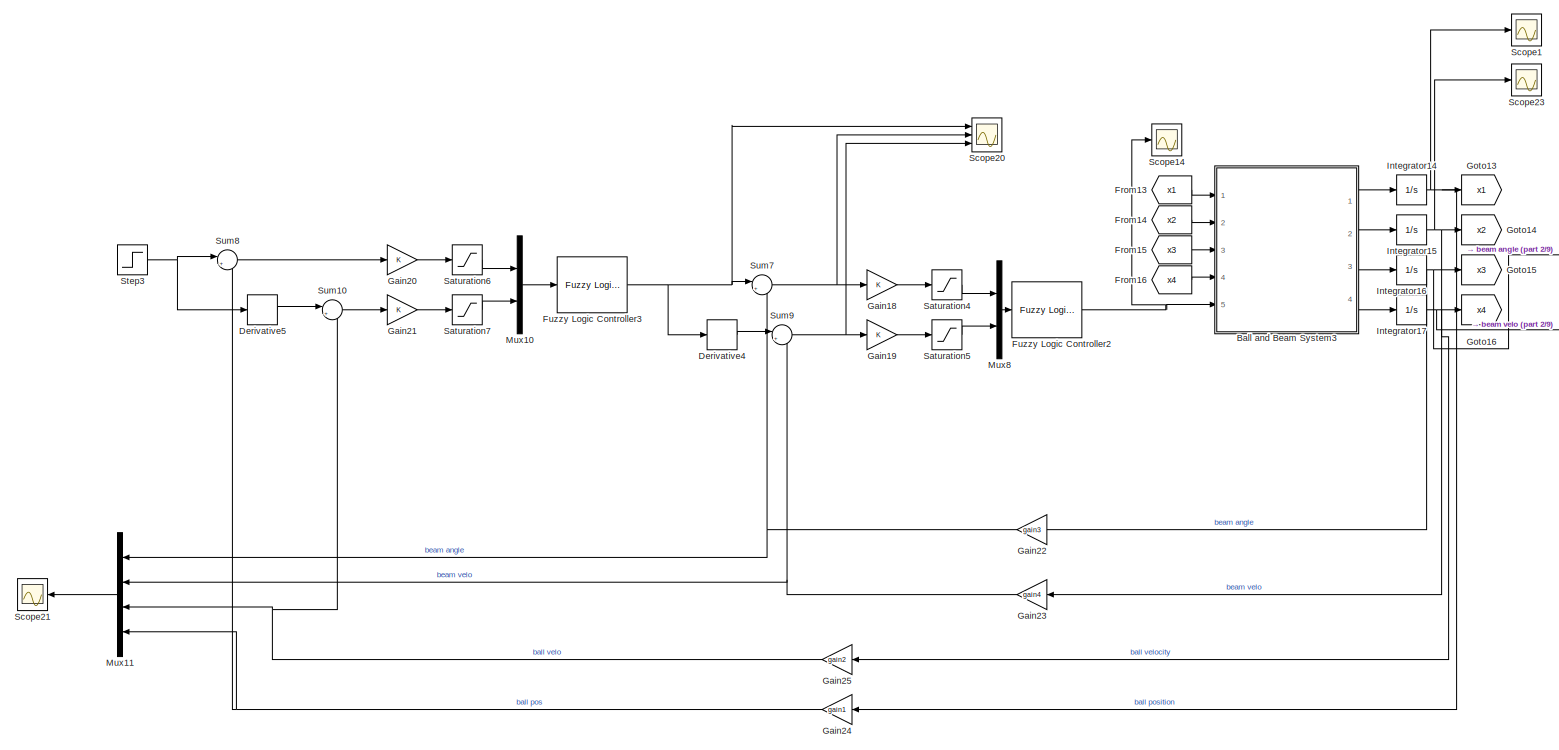
[diagram: root canvas - part 1/9, top center region]
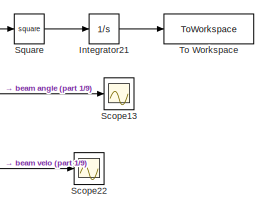
[diagram: root canvas - part 2/9, top right region]
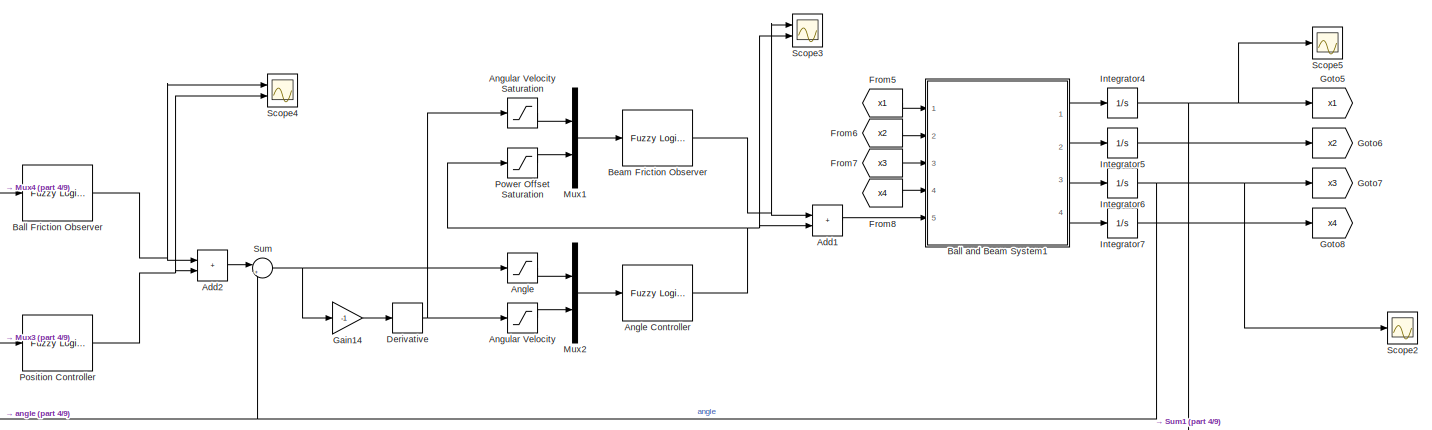
[diagram: root canvas - part 3/9, top left region]
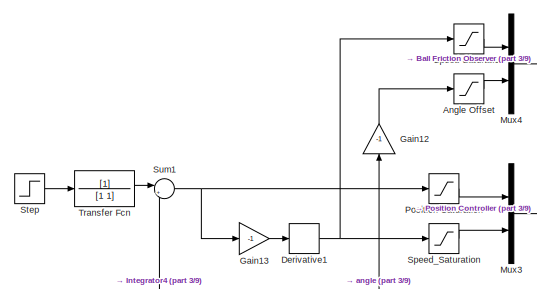
[diagram: root canvas - part 4/9, top left region]
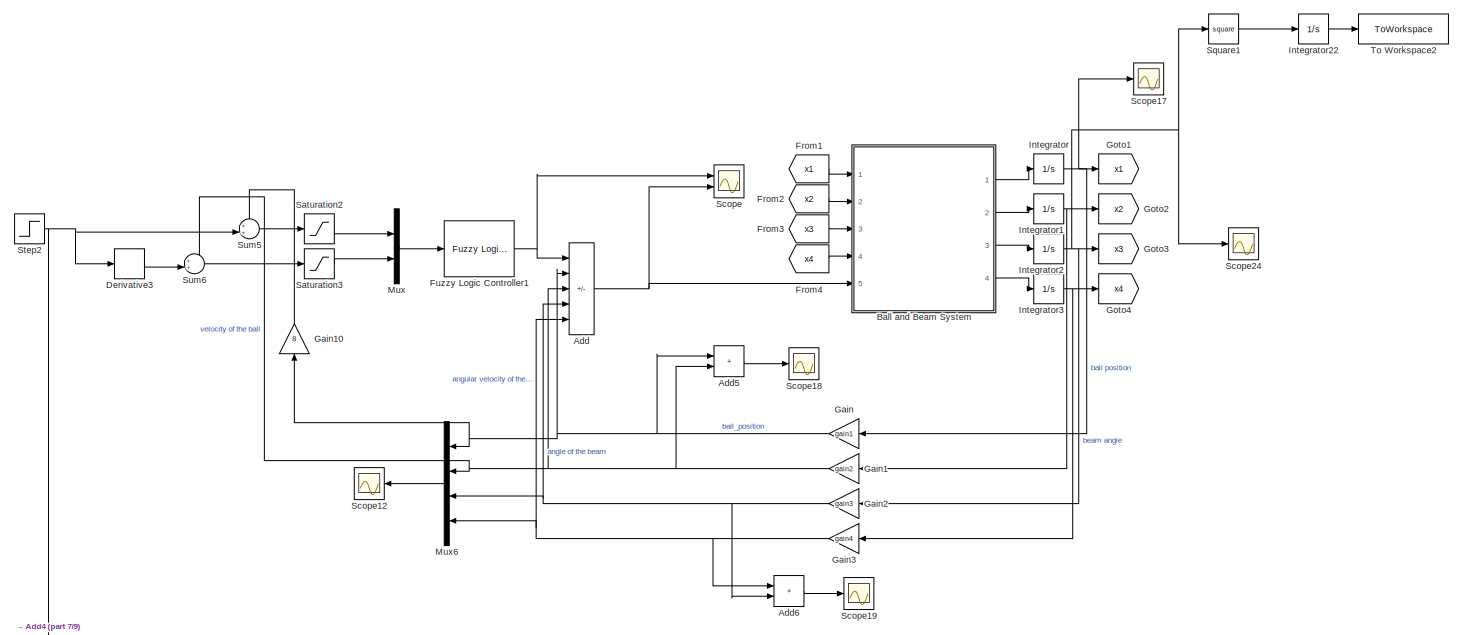
[diagram: root canvas - part 5/9, middle right region]
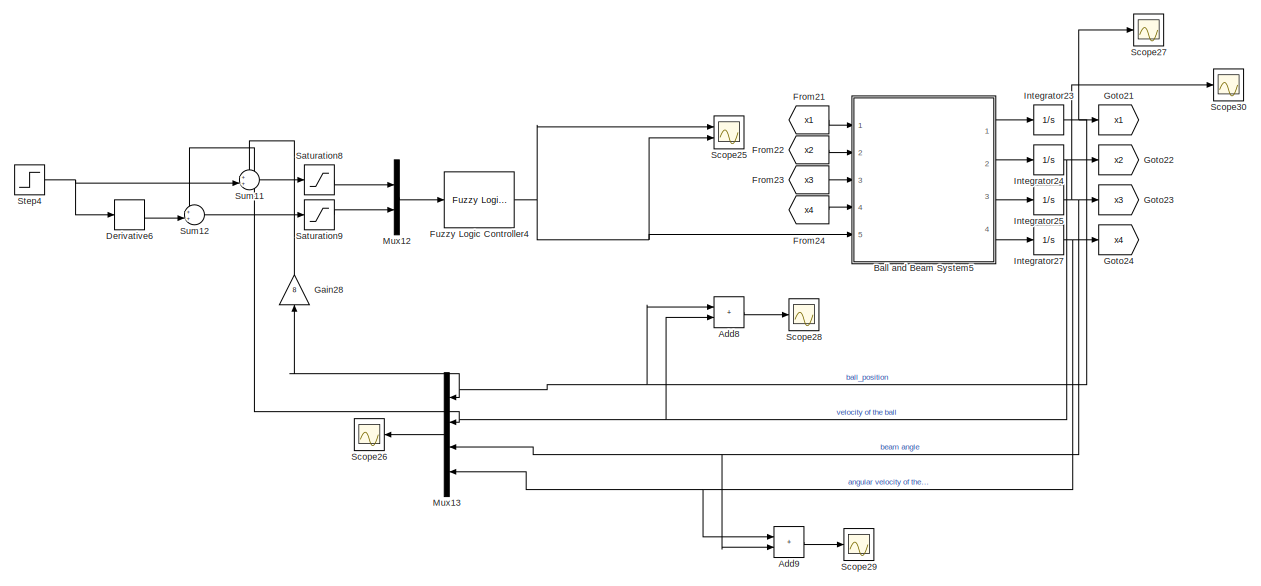
[diagram: root canvas - part 6/9, central region]
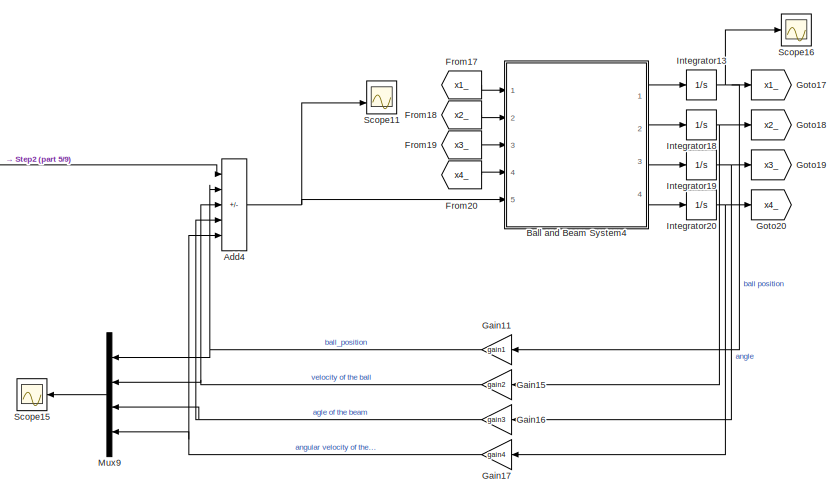
[diagram: root canvas - part 7/9, middle right region]
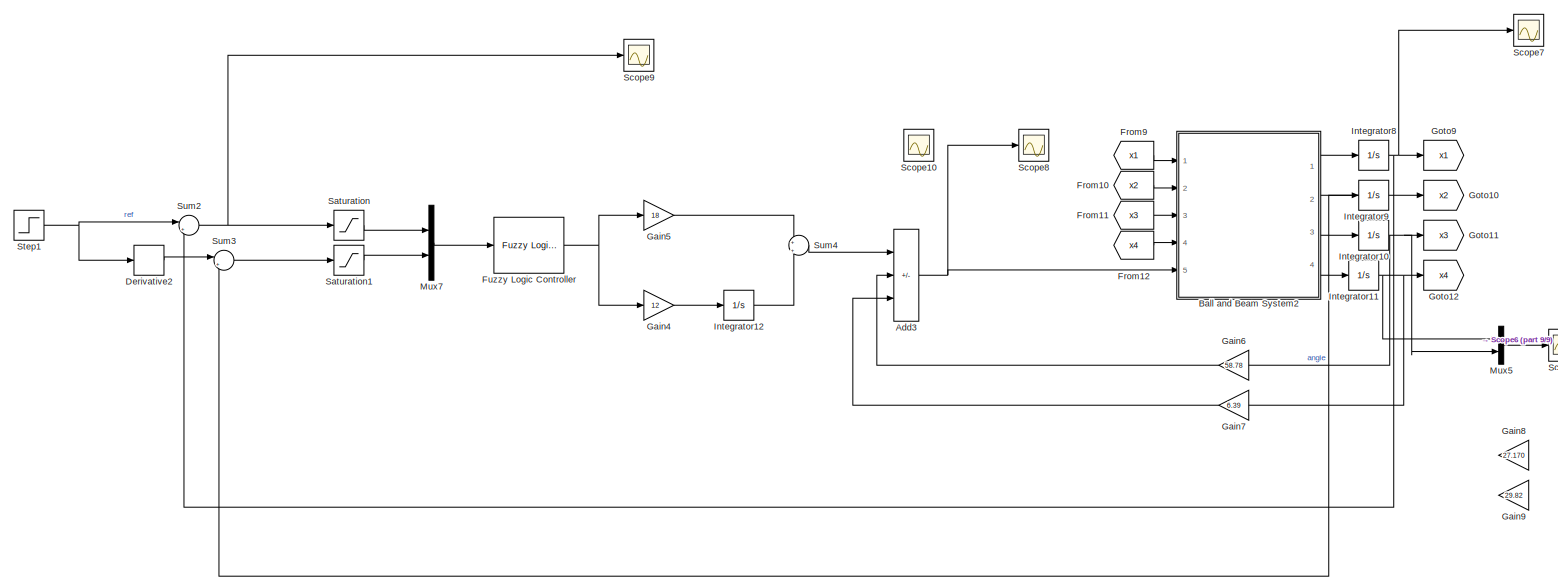
[diagram: root canvas - part 8/9, bottom right region]
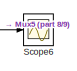
[diagram: root canvas - part 9/9, bottom right region]
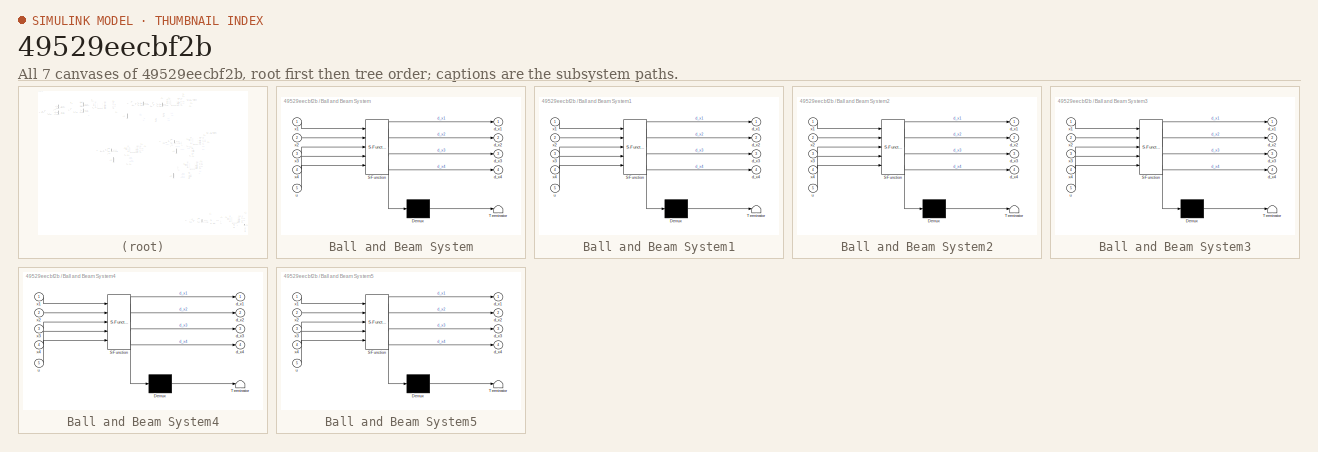
[diagram: thumbnail index - all 7 canvases of the model, root first then tree order]
MODEL slx_49529eecbf2b
KIND model
CONFIG AbsTol = auto
CONFIG EnableMultiTasking = off
CONFIG FixedStep = 0.05
CONFIG MaxStep = auto
CONFIG MinStep = auto
CONFIG RelTol = 1e-3
CONFIG SampleTimeConstraint = Unconstrained
CONFIG SolverName = FixedStepAuto
CONFIG StartTime = 0.0
CONFIG StopTime = 100
BLOCK [Sum] Add
  IconShape = rectangular
  Inputs = +----
  Ports = [5, 1]
BLOCK [Sum] Add1
  Commented = on
  IconShape = rectangular
  Ports = [2, 1]
BLOCK [Sum] Add2
  Commented = on
  IconShape = rectangular
  Ports = [2, 1]
BLOCK [Sum] Add3
  Commented = on
  IconShape = rectangular
  Inputs = +--
  Ports = [3, 1]
BLOCK [Sum] Add4
  IconShape = rectangular
  Inputs = +----
  Ports = [5, 1]
BLOCK [Sum] Add5
  IconShape = rectangular
  Ports = [2, 1]
BLOCK [Sum] Add6
  IconShape = rectangular
  Ports = [2, 1]
BLOCK [Sum] Add8
  Commented = on
  IconShape = rectangular
  Ports = [2, 1]
BLOCK [Sum] Add9
  Commented = on
  IconShape = rectangular
  Ports = [2, 1]
BLOCK [Saturate] Angle
  Commented = on
  LowerLimit = angle_input_alt
  UpperLimit = angle_input_ust
BLOCK [Reference] Angle Controller  REF=fuzblock/Fuzzy Logic   (lib defined in mdl_858b3b3e7478)
Controller
  Commented = on
  Ports = [1, 1]
  SourceBlock = fuzblock/Fuzzy Logic \nController
  SourceProductBaseCode = FL
  SourceType = Fuzzy Inference System
BLOCK [Saturate] Angle Offset
  Commented = on
  LowerLimit = -0.1
  UpperLimit = 0.1
BLOCK [Saturate] Angular Velocity
  Commented = on
  LowerLimit = angular_velocity_alt
  UpperLimit = angular_velocity_ust
BLOCK [Saturate] Angular Velocity Saturation
  Commented = on
  LowerLimit = angularvelocity_alt
  NameLocation = left
  UpperLimit = angularvelocity_ust
BLOCK [Reference] Ball Friction Observer  REF=fuzblock/Fuzzy Logic   (lib defined in mdl_858b3b3e7478)
Controller
  Commented = on
  Ports = [1, 1]
  SourceBlock = fuzblock/Fuzzy Logic \nController
  SourceProductBaseCode = FL
  SourceType = Fuzzy Inference System
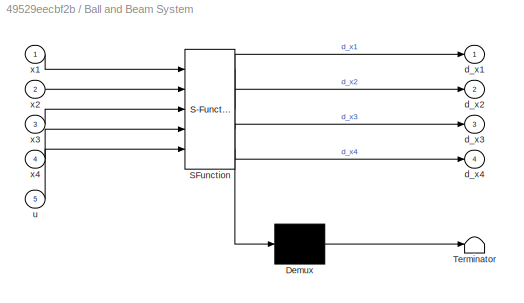
BLOCK [SubSystem] Ball and Beam System
  ErrorFcn = Stateflow.Translate.translate
  PermitHierarchicalResolution = ExplicitOnly
  Ports = [5, 4]
  RequestExecContextInheritance = off
  SFBlockType = MATLAB Function
  TreatAsAtomicUnit = on
BLOCK [Demux] Ball and Beam System/ Demux 
  Outputs = 1
  Ports = [1, 1]
BLOCK [S-Function] Ball and Beam System/ SFunction 
  EnableBusSupport = on
  FunctionName = sf_sfun
  PortCounts = [5 5]
  Ports = [5, 5]
  SFcnIsStateOwnerBlock = off
  SFunctionDeploymentMode = off
  Tag = Stateflow S-Function 2
BLOCK [Terminator] Ball and Beam System/ Terminator 
BLOCK [Outport] Ball and Beam System/d_x1
BLOCK [Outport] Ball and Beam System/d_x2
  Port = 2
BLOCK [Outport] Ball and Beam System/d_x3
  Port = 3
BLOCK [Outport] Ball and Beam System/d_x4
  Port = 4
BLOCK [Inport] Ball and Beam System/u
  Port = 5
BLOCK [Inport] Ball and Beam System/x1
BLOCK [Inport] Ball and Beam System/x2
  Port = 2
BLOCK [Inport] Ball and Beam System/x3
  Port = 3
BLOCK [Inport] Ball and Beam System/x4
  Port = 4
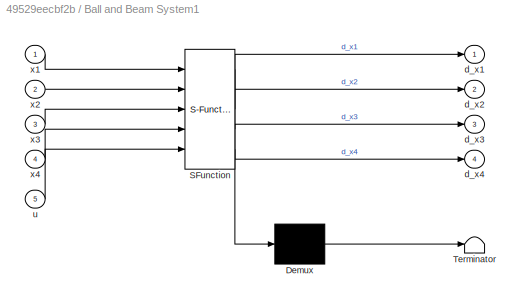
BLOCK [SubSystem] Ball and Beam System1
  Commented = on
  ErrorFcn = Stateflow.Translate.translate
  PermitHierarchicalResolution = ExplicitOnly
  Ports = [5, 4]
  RequestExecContextInheritance = off
  SFBlockType = MATLAB Function
  TreatAsAtomicUnit = on
BLOCK [Demux] Ball and Beam System1/ Demux 
  Outputs = 1
  Ports = [1, 1]
BLOCK [S-Function] Ball and Beam System1/ SFunction 
  EnableBusSupport = on
  FunctionName = sf_sfun
  PortCounts = [5 5]
  Ports = [5, 5]
  SFcnIsStateOwnerBlock = off
  SFunctionDeploymentMode = off
  Tag = Stateflow S-Function 1
BLOCK [Terminator] Ball and Beam System1/ Terminator 
BLOCK [Outport] Ball and Beam System1/d_x1
BLOCK [Outport] Ball and Beam System1/d_x2
  Port = 2
BLOCK [Outport] Ball and Beam System1/d_x3
  Port = 3
BLOCK [Outport] Ball and Beam System1/d_x4
  Port = 4
BLOCK [Inport] Ball and Beam System1/u
  Port = 5
BLOCK [Inport] Ball and Beam System1/x1
BLOCK [Inport] Ball and Beam System1/x2
  Port = 2
BLOCK [Inport] Ball and Beam System1/x3
  Port = 3
BLOCK [Inport] Ball and Beam System1/x4
  Port = 4
BLOCK [SubSystem] Ball and Beam System2
  Commented = on
  ErrorFcn = Stateflow.Translate.translate
  PermitHierarchicalResolution = ExplicitOnly
  Ports = [5, 4]
  RequestExecContextInheritance = off
  SFBlockType = MATLAB Function
  TreatAsAtomicUnit = on
BLOCK [Demux] Ball and Beam System2/ Demux 
  Outputs = 1
  Ports = [1, 1]
BLOCK [S-Function] Ball and Beam System2/ SFunction 
  EnableBusSupport = on
  FunctionName = sf_sfun
  PortCounts = [5 5]
  Ports = [5, 5]
  SFcnIsStateOwnerBlock = off
  SFunctionDeploymentMode = off
  Tag = Stateflow S-Function 3
BLOCK [Terminator] Ball and Beam System2/ Terminator 
BLOCK [Outport] Ball and Beam System2/d_x1
BLOCK [Outport] Ball and Beam System2/d_x2
  Port = 2
BLOCK [Outport] Ball and Beam System2/d_x3
  Port = 3
BLOCK [Outport] Ball and Beam System2/d_x4
  Port = 4
BLOCK [Inport] Ball and Beam System2/u
  Port = 5
BLOCK [Inport] Ball and Beam System2/x1
BLOCK [Inport] Ball and Beam System2/x2
  Port = 2
BLOCK [Inport] Ball and Beam System2/x3
  Port = 3
BLOCK [Inport] Ball and Beam System2/x4
  Port = 4
BLOCK [SubSystem] Ball and Beam System3
  Commented = on
  ErrorFcn = Stateflow.Translate.translate
  PermitHierarchicalResolution = ExplicitOnly
  Ports = [5, 4]
  RequestExecContextInheritance = off
  SFBlockType = MATLAB Function
  TreatAsAtomicUnit = on
BLOCK [Demux] Ball and Beam System3/ Demux 
  Outputs = 1
  Ports = [1, 1]
BLOCK [S-Function] Ball and Beam System3/ SFunction 
  EnableBusSupport = on
  FunctionName = sf_sfun
  PortCounts = [5 5]
  Ports = [5, 5]
  SFcnIsStateOwnerBlock = off
  SFunctionDeploymentMode = off
  Tag = Stateflow S-Function 4
BLOCK [Terminator] Ball and Beam System3/ Terminator 
BLOCK [Outport] Ball and Beam System3/d_x1
BLOCK [Outport] Ball and Beam System3/d_x2
  Port = 2
BLOCK [Outport] Ball and Beam System3/d_x3
  Port = 3
BLOCK [Outport] Ball and Beam System3/d_x4
  Port = 4
BLOCK [Inport] Ball and Beam System3/u
  Port = 5
BLOCK [Inport] Ball and Beam System3/x1
BLOCK [Inport] Ball and Beam System3/x2
  Port = 2
BLOCK [Inport] Ball and Beam System3/x3
  Port = 3
BLOCK [Inport] Ball and Beam System3/x4
  Port = 4
BLOCK [SubSystem] Ball and Beam System4
  ErrorFcn = Stateflow.Translate.translate
  PermitHierarchicalResolution = ExplicitOnly
  Ports = [5, 4]
  RequestExecContextInheritance = off
  SFBlockType = MATLAB Function
  TreatAsAtomicUnit = on
BLOCK [Demux] Ball and Beam System4/ Demux 
  Outputs = 1
  Ports = [1, 1]
BLOCK [S-Function] Ball and Beam System4/ SFunction 
  EnableBusSupport = on
  FunctionName = sf_sfun
  PortCounts = [5 5]
  Ports = [5, 5]
  SFcnIsStateOwnerBlock = off
  SFunctionDeploymentMode = off
  Tag = Stateflow S-Function 5
BLOCK [Terminator] Ball and Beam System4/ Terminator 
BLOCK [Outport] Ball and Beam System4/d_x1
BLOCK [Outport] Ball and Beam System4/d_x2
  Port = 2
BLOCK [Outport] Ball and Beam System4/d_x3
  Port = 3
BLOCK [Outport] Ball and Beam System4/d_x4
  Port = 4
BLOCK [Inport] Ball and Beam System4/u
  Port = 5
BLOCK [Inport] Ball and Beam System4/x1
BLOCK [Inport] Ball and Beam System4/x2
  Port = 2
BLOCK [Inport] Ball and Beam System4/x3
  Port = 3
BLOCK [Inport] Ball and Beam System4/x4
  Port = 4
BLOCK [SubSystem] Ball and Beam System5
  Commented = on
  ErrorFcn = Stateflow.Translate.translate
  PermitHierarchicalResolution = ExplicitOnly
  Ports = [5, 4]
  RequestExecContextInheritance = off
  SFBlockType = MATLAB Function
  TreatAsAtomicUnit = on
BLOCK [Demux] Ball and Beam System5/ Demux 
  Outputs = 1
  Ports = [1, 1]
BLOCK [S-Function] Ball and Beam System5/ SFunction 
  EnableBusSupport = on
  FunctionName = sf_sfun
  PortCounts = [5 5]
  Ports = [5, 5]
  SFcnIsStateOwnerBlock = off
  SFunctionDeploymentMode = off
  Tag = Stateflow S-Function 6
BLOCK [Terminator] Ball and Beam System5/ Terminator 
BLOCK [Outport] Ball and Beam System5/d_x1
BLOCK [Outport] Ball and Beam System5/d_x2
  Port = 2
BLOCK [Outport] Ball and Beam System5/d_x3
  Port = 3
BLOCK [Outport] Ball and Beam System5/d_x4
  Port = 4
BLOCK [Inport] Ball and Beam System5/u
  Port = 5
BLOCK [Inport] Ball and Beam System5/x1
BLOCK [Inport] Ball and Beam System5/x2
  Port = 2
BLOCK [Inport] Ball and Beam System5/x3
  Port = 3
BLOCK [Inport] Ball and Beam System5/x4
  Port = 4
BLOCK [Reference] Beam Friction Observer  REF=fuzblock/Fuzzy Logic   (lib defined in mdl_858b3b3e7478)
Controller
  Commented = on
  Ports = [1, 1]
  SourceBlock = fuzblock/Fuzzy Logic \nController
  SourceProductBaseCode = FL
  SourceType = Fuzzy Inference System
BLOCK [Derivative] Derivative
  Commented = on
BLOCK [Derivative] Derivative1
  Commented = on
BLOCK [Derivative] Derivative2
  Commented = on
BLOCK [Derivative] Derivative3
BLOCK [Derivative] Derivative4
  Commented = on
BLOCK [Derivative] Derivative5
  Commented = on
BLOCK [Derivative] Derivative6
  Commented = on
BLOCK [From] From1
  GotoTag = x1
BLOCK [From] From10
  Commented = on
  GotoTag = x2
BLOCK [From] From11
  Commented = on
  GotoTag = x3
BLOCK [From] From12
  Commented = on
  GotoTag = x4
BLOCK [From] From13
  Commented = on
  GotoTag = x1
BLOCK [From] From14
  Commented = on
  GotoTag = x2
BLOCK [From] From15
  Commented = on
  GotoTag = x3
BLOCK [From] From16
  Commented = on
  GotoTag = x4
BLOCK [From] From17
  GotoTag = x1_
BLOCK [From] From18
  GotoTag = x2_
BLOCK [From] From19
  GotoTag = x3_
BLOCK [From] From2
  GotoTag = x2
BLOCK [From] From20
  GotoTag = x4_
BLOCK [From] From21
  Commented = on
  GotoTag = x1
BLOCK [From] From22
  Commented = on
  GotoTag = x2
BLOCK [From] From23
  Commented = on
  GotoTag = x3
BLOCK [From] From24
  Commented = on
  GotoTag = x4
BLOCK [From] From3
  GotoTag = x3
BLOCK [From] From4
  GotoTag = x4
BLOCK [From] From5
  Commented = on
  GotoTag = x1
BLOCK [From] From6
  Commented = on
  GotoTag = x2
BLOCK [From] From7
  Commented = on
  GotoTag = x3
BLOCK [From] From8
  Commented = on
  GotoTag = x4
BLOCK [From] From9
  Commented = on
  GotoTag = x1
BLOCK [Reference] Fuzzy Logic Controller  REF=fuzblock/Fuzzy Logic   (lib defined in mdl_858b3b3e7478)
Controller
  Commented = on
  Ports = [1, 1]
  SourceBlock = fuzblock/Fuzzy Logic \nController
  SourceProductBaseCode = FL
  SourceType = Fuzzy Inference System
BLOCK [Reference] Fuzzy Logic Controller1  REF=fuzblock/Fuzzy Logic   (lib defined in mdl_858b3b3e7478)
Controller
  Ports = [1, 1]
  SourceBlock = fuzblock/Fuzzy Logic \nController
  SourceProductBaseCode = FL
  SourceType = Fuzzy Inference System
BLOCK [Reference] Fuzzy Logic Controller2  REF=fuzblock/Fuzzy Logic   (lib defined in mdl_858b3b3e7478)
Controller
  Commented = on
  Ports = [1, 1]
  SourceBlock = fuzblock/Fuzzy Logic \nController
  SourceProductBaseCode = FL
  SourceType = Fuzzy Inference System
BLOCK [Reference] Fuzzy Logic Controller3  REF=fuzblock/Fuzzy Logic   (lib defined in mdl_858b3b3e7478)
Controller
  Commented = on
  Ports = [1, 1]
  SourceBlock = fuzblock/Fuzzy Logic \nController
  SourceProductBaseCode = FL
  SourceType = Fuzzy Inference System
BLOCK [Reference] Fuzzy Logic Controller4  REF=fuzblock/Fuzzy Logic   (lib defined in mdl_858b3b3e7478)
Controller
  Commented = on
  Ports = [1, 1]
  SourceBlock = fuzblock/Fuzzy Logic \nController
  SourceProductBaseCode = FL
  SourceType = Fuzzy Inference System
BLOCK [Gain] Gain
  Gain = gain1
  NameLocation = top
BLOCK [Gain] Gain1
  Gain = gain2
  NameLocation = top
BLOCK [Gain] Gain10
  Gain = 8
  NameLocation = right
BLOCK [Gain] Gain11
  Gain = gain1
  NameLocation = top
BLOCK [Gain] Gain12
  Commented = on
  Gain = -1
  NameLocation = right
BLOCK [Gain] Gain13
  Commented = on
  Gain = -1
BLOCK [Gain] Gain14
  Commented = on
  Gain = -1
BLOCK [Gain] Gain15
  Gain = gain2
  NameLocation = top
BLOCK [Gain] Gain16
  Gain = gain3
  NameLocation = top
BLOCK [Gain] Gain17
  Gain = gain4
  NameLocation = top
BLOCK [Gain] Gain18
  Commented = on
BLOCK [Gain] Gain19
  Commented = on
BLOCK [Gain] Gain2
  Gain = gain3
  NameLocation = top
BLOCK [Gain] Gain20
  Commented = on
BLOCK [Gain] Gain21
  Commented = on
BLOCK [Gain] Gain22
  Commented = on
  Gain = gain3
  NameLocation = top
BLOCK [Gain] Gain23
  Commented = on
  Gain = gain4
  NameLocation = top
BLOCK [Gain] Gain24
  Commented = on
  Gain = gain1
  NameLocation = top
BLOCK [Gain] Gain25
  Commented = on
  Gain = gain2
  NameLocation = top
BLOCK [Gain] Gain28
  Commented = on
  Gain = 8
  NameLocation = right
BLOCK [Gain] Gain3
  Gain = gain4
  NameLocation = top
BLOCK [Gain] Gain4
  Commented = on
  Gain = 12
BLOCK [Gain] Gain5
  Commented = on
  Gain = 18
BLOCK [Gain] Gain6
  Commented = on
  Gain = 58.78
  NameLocation = top
BLOCK [Gain] Gain7
  Commented = on
  Gain = 6.39
  NameLocation = top
BLOCK [Gain] Gain8
  Commented = on
  Gain = 27.170
  NameLocation = top
BLOCK [Gain] Gain9
  Commented = on
  Gain = 29.82
  NameLocation = top
BLOCK [Goto] Goto1
  GotoTag = x1
BLOCK [Goto] Goto10
  Commented = on
  GotoTag = x2
BLOCK [Goto] Goto11
  Commented = on
  GotoTag = x3
BLOCK [Goto] Goto12
  Commented = on
  GotoTag = x4
BLOCK [Goto] Goto13
  Commented = on
  GotoTag = x1
BLOCK [Goto] Goto14
  Commented = on
  GotoTag = x2
BLOCK [Goto] Goto15
  Commented = on
  GotoTag = x3
BLOCK [Goto] Goto16
  Commented = on
  GotoTag = x4
BLOCK [Goto] Goto17
  GotoTag = x1_
BLOCK [Goto] Goto18
  GotoTag = x2_
BLOCK [Goto] Goto19
  GotoTag = x3_
BLOCK [Goto] Goto2
  GotoTag = x2
BLOCK [Goto] Goto20
  GotoTag = x4_
BLOCK [Goto] Goto21
  Commented = on
  GotoTag = x1
BLOCK [Goto] Goto22
  Commented = on
  GotoTag = x2
BLOCK [Goto] Goto23
  Commented = on
  GotoTag = x3
BLOCK [Goto] Goto24
  Commented = on
  GotoTag = x4
BLOCK [Goto] Goto3
  GotoTag = x3
BLOCK [Goto] Goto4
  GotoTag = x4
BLOCK [Goto] Goto5
  Commented = on
  GotoTag = x1
BLOCK [Goto] Goto6
  Commented = on
  GotoTag = x2
BLOCK [Goto] Goto7
  Commented = on
  GotoTag = x3
BLOCK [Goto] Goto8
  Commented = on
  GotoTag = x4
BLOCK [Goto] Goto9
  Commented = on
  GotoTag = x1
BLOCK [Integrator] Integrator
  Ports = [1, 1]
BLOCK [Integrator] Integrator1
  Ports = [1, 1]
BLOCK [Integrator] Integrator10
  Commented = on
  Ports = [1, 1]
BLOCK [Integrator] Integrator11
  Commented = on
  Ports = [1, 1]
BLOCK [Integrator] Integrator12
  Commented = on
  Ports = [1, 1]
BLOCK [Integrator] Integrator13
  Ports = [1, 1]
BLOCK [Integrator] Integrator14
  Commented = on
  Ports = [1, 1]
BLOCK [Integrator] Integrator15
  Commented = on
  Ports = [1, 1]
BLOCK [Integrator] Integrator16
  Commented = on
  Ports = [1, 1]
BLOCK [Integrator] Integrator17
  Commented = on
  Ports = [1, 1]
BLOCK [Integrator] Integrator18
  Ports = [1, 1]
BLOCK [Integrator] Integrator19
  Ports = [1, 1]
BLOCK [Integrator] Integrator2
  Ports = [1, 1]
BLOCK [Integrator] Integrator20
  Ports = [1, 1]
BLOCK [Integrator] Integrator21
  Commented = on
  Ports = [1, 1]
BLOCK [Integrator] Integrator22
  Ports = [1, 1]
BLOCK [Integrator] Integrator23
  Commented = on
  Ports = [1, 1]
BLOCK [Integrator] Integrator24
  Commented = on
  Ports = [1, 1]
BLOCK [Integrator] Integrator25
  Commented = on
  Ports = [1, 1]
BLOCK [Integrator] Integrator27
  Commented = on
  Ports = [1, 1]
BLOCK [Integrator] Integrator3
  Ports = [1, 1]
BLOCK [Integrator] Integrator4
  Commented = on
  Ports = [1, 1]
BLOCK [Integrator] Integrator5
  Commented = on
  Ports = [1, 1]
BLOCK [Integrator] Integrator6
  Commented = on
  Ports = [1, 1]
BLOCK [Integrator] Integrator7
  Commented = on
  Ports = [1, 1]
BLOCK [Integrator] Integrator8
  Commented = on
  Ports = [1, 1]
BLOCK [Integrator] Integrator9
  Commented = on
  Ports = [1, 1]
BLOCK [Mux] Mux
  DisplayOption = bar
  Inputs = 2
  Ports = [2, 1]
BLOCK [Mux] Mux1
  Commented = on
  DisplayOption = bar
  Inputs = 2
  Ports = [2, 1]
BLOCK [Mux] Mux10
  Commented = on
  DisplayOption = bar
  Inputs = 2
  Ports = [2, 1]
BLOCK [Mux] Mux11
  Commented = on
  DisplayOption = bar
  NameLocation = top
  Ports = [4, 1]
BLOCK [Mux] Mux12
  Commented = on
  DisplayOption = bar
  Inputs = 2
  Ports = [2, 1]
BLOCK [Mux] Mux13
  Commented = on
  DisplayOption = bar
  NameLocation = top
  Ports = [4, 1]
BLOCK [Mux] Mux2
  Commented = on
  DisplayOption = bar
  Inputs = 2
  Ports = [2, 1]
BLOCK [Mux] Mux3
  Commented = on
  DisplayOption = bar
  Inputs = 2
  Ports = [2, 1]
BLOCK [Mux] Mux4
  Commented = on
  DisplayOption = bar
  Inputs = 2
  Ports = [2, 1]
BLOCK [Mux] Mux5
  Commented = on
  DisplayOption = bar
  Inputs = 2
  Ports = [2, 1]
BLOCK [Mux] Mux6
  DisplayOption = bar
  NameLocation = top
  Ports = [4, 1]
BLOCK [Mux] Mux7
  Commented = on
  DisplayOption = bar
  Inputs = 2
  Ports = [2, 1]
BLOCK [Mux] Mux8
  Commented = on
  DisplayOption = bar
  Inputs = 2
  Ports = [2, 1]
BLOCK [Mux] Mux9
  DisplayOption = bar
  NameLocation = top
  Ports = [4, 1]
BLOCK [Reference] Position Controller  REF=fuzblock/Fuzzy Logic   (lib defined in mdl_858b3b3e7478)
Controller
  Commented = on
  Ports = [1, 1]
  SourceBlock = fuzblock/Fuzzy Logic \nController
  SourceProductBaseCode = FL
  SourceType = Fuzzy Inference System
BLOCK [Saturate] Position Saturation
  Commented = on
  LowerLimit = position_alt
  UpperLimit = position_ust
BLOCK [Saturate] Power Offset Saturation
  Commented = on
  LowerLimit = input_power_alt
  UpperLimit = input_power_ust
BLOCK [Saturate] Saturation
  Commented = on
  LowerLimit = position_alt
  UpperLimit = position_ust
BLOCK [Saturate] Saturation1
  Commented = on
  LowerLimit = speed_alt
  UpperLimit = speed_ust
BLOCK [Saturate] Saturation2
  LowerLimit = position_alt
  UpperLimit = position_ust
BLOCK [Saturate] Saturation3
  LowerLimit = speed_alt
  UpperLimit = speed_ust
BLOCK [Saturate] Saturation4
  Commented = on
  LowerLimit = angle_input_alt
  UpperLimit = angle_input_ust
BLOCK [Saturate] Saturation5
  Commented = on
  LowerLimit = angular_velocity_alt
  UpperLimit = angular_velocity_ust
BLOCK [Saturate] Saturation6
  Commented = on
  LowerLimit = position_alt
  UpperLimit = position_ust
BLOCK [Saturate] Saturation7
  Commented = on
  LowerLimit = speed_alt
  UpperLimit = speed_ust
BLOCK [Saturate] Saturation8
  Commented = on
  LowerLimit = position_alt
  UpperLimit = position_ust
BLOCK [Saturate] Saturation9
  Commented = on
  LowerLimit = speed_alt
  UpperLimit = speed_ust
BLOCK [Scope] Scope
  Floating = off
  NumInputPorts = 2
  Ports = [2]
  ScopeSpecificationString = Simulink.scopes.TimeScopeBlockCfg('CurrentConfiguration', extmgr.ConfigurationSet(extmgr.Configuration('Core','General UI',true,'FigureColor',[1 1 1]),extmgr.Configuration('Core','Source UI',true),extmgr.Configuration('Sources','WiredSimulink',true),extmgr.Configuration('Visuals','Time Domain',true,'SerializedDisplays',{struct('MinYLimReal','-0.20363','MaxYLimReal','0.15267','YLabelReal','','MinYL...<+1678ch>
BLOCK [Scope] Scope1
  Commented = on
  Floating = off
  NumInputPorts = 1
  Ports = [1]
  ScopeSpecificationString = Simulink.scopes.TimeScopeBlockCfg('CurrentConfiguration', extmgr.ConfigurationSet(extmgr.Configuration('Core','General UI',true),extmgr.Configuration('Core','Source UI',true),extmgr.Configuration('Sources','WiredSimulink',true,'DataLoggingVariableName','ScopeData3'),extmgr.Configuration('Visuals','Time Domain',true,'SerializedDisplays',{struct('MinYLimReal','-591.19697','MaxYLimReal','65.68869','Y...<+1483ch>
BLOCK [Scope] Scope10
  Commented = on
  Floating = off
  NumInputPorts = 1
  Ports = [1]
  ScopeSpecificationString = Simulink.scopes.TimeScopeBlockCfg('CurrentConfiguration', extmgr.ConfigurationSet(extmgr.Configuration('Core','General UI',true),extmgr.Configuration('Core','Source UI',true),extmgr.Configuration('Sources','WiredSimulink',true,'DataLoggingVariableName','ScopeData10'),extmgr.Configuration('Visuals','Time Domain',true,'SerializedDisplays',{struct('MinYLimReal','-1.00000','MaxYLimReal','1.00000','YLa...<+1404ch>
BLOCK [Scope] Scope11
  Floating = off
  NumInputPorts = 2
  Ports = [2]
  ScopeSpecificationString = Simulink.scopes.TimeScopeBlockCfg('CurrentConfiguration', extmgr.ConfigurationSet(extmgr.Configuration('Core','General UI',true),extmgr.Configuration('Core','Source UI',true),extmgr.Configuration('Sources','WiredSimulink',true,'DataLoggingVariableName','ScopeData11'),extmgr.Configuration('Visuals','Time Domain',true,'SerializedDisplays',{struct('MinYLimReal','-154.74383','MaxYLimReal','42.04548','...<+1461ch>
BLOCK [Scope] Scope12
  Floating = off
  NameLocation = top
  NumInputPorts = 1
  Ports = [1]
  ScopeSpecificationString = Simulink.scopes.TimeScopeBlockCfg('CurrentConfiguration', extmgr.ConfigurationSet(extmgr.Configuration('Core','General UI',true),extmgr.Configuration('Core','Source UI',true),extmgr.Configuration('Sources','WiredSimulink',true,'DataLoggingVariableName','ScopeData12'),extmgr.Configuration('Visuals','Time Domain',true,'SerializedDisplays',{struct('MinYLimReal','-0.32042','MaxYLimReal','0.08746','YLa...<+1516ch>
BLOCK [Scope] Scope13
  Commented = on
  Floating = off
  NumInputPorts = 1
  Ports = [1]
  ScopeSpecificationString = Simulink.scopes.TimeScopeBlockCfg('CurrentConfiguration', extmgr.ConfigurationSet(extmgr.Configuration('Core','General UI',true),extmgr.Configuration('Core','Source UI',true),extmgr.Configuration('Sources','WiredSimulink',true,'DataLoggingVariableName','ScopeData4'),extmgr.Configuration('Visuals','Time Domain',true,'SerializedDisplays',{struct('MinYLimReal','-0.14306','MaxYLimReal','0.07427','YLab...<+1468ch>
BLOCK [Scope] Scope14
  Commented = on
  Floating = off
  NumInputPorts = 1
  Ports = [1]
  ScopeSpecificationString = Simulink.scopes.TimeScopeBlockCfg('CurrentConfiguration', extmgr.ConfigurationSet(extmgr.Configuration('Core','General UI',true),extmgr.Configuration('Core','Source UI',true),extmgr.Configuration('Sources','WiredSimulink',true,'DataLoggingVariableName','ScopeData5'),extmgr.Configuration('Visuals','Time Domain',true,'SerializedDisplays',{struct('MinYLimReal','-3.48622','MaxYLimReal','5.05402','YLab...<+1363ch>
BLOCK [Scope] Scope15
  Floating = off
  NameLocation = top
  NumInputPorts = 1
  Ports = [1]
  ScopeSpecificationString = Simulink.scopes.TimeScopeBlockCfg('CurrentConfiguration', extmgr.ConfigurationSet(extmgr.Configuration('Core','General UI',true),extmgr.Configuration('Core','Source UI',true),extmgr.Configuration('Sources','WiredSimulink',true,'DataLoggingVariableName','ScopeData15'),extmgr.Configuration('Visuals','Time Domain',true,'SerializedDisplays',{struct('MinYLimReal','-1.22009','MaxYLimReal','7.73183','YLa...<+1515ch>
BLOCK [Scope] Scope16
  Floating = off
  NumInputPorts = 1
  Ports = [1]
  ScopeSpecificationString = Simulink.scopes.TimeScopeBlockCfg('CurrentConfiguration', extmgr.ConfigurationSet(extmgr.Configuration('Core','General UI',true,'FigureColor',[1 1 1]),extmgr.Configuration('Core','Source UI',true),extmgr.Configuration('Sources','WiredSimulink',true,'DataLoggingVariableName','ScopeData16'),extmgr.Configuration('Visuals','Time Domain',true,'SerializedDisplays',{struct('MinYLimReal','-962.92767','Max...<+1565ch>
BLOCK [Scope] Scope17
  Floating = off
  NumInputPorts = 1
  Ports = [1]
  ScopeSpecificationString = Simulink.scopes.TimeScopeBlockCfg('CurrentConfiguration', extmgr.ConfigurationSet(extmgr.Configuration('Core','General UI',true,'FigureColor',[1 1 1]),extmgr.Configuration('Core','Source UI',true),extmgr.Configuration('Sources','WiredSimulink',true,'DataLoggingVariableName','ScopeData17'),extmgr.Configuration('Visuals','Time Domain',true,'SerializedDisplays',{struct('MinYLimReal','-0.02176','MaxYL...<+1547ch>
BLOCK [Scope] Scope18
  Floating = off
  NumInputPorts = 1
  Ports = [1]
  ScopeSpecificationString = Simulink.scopes.TimeScopeBlockCfg('CurrentConfiguration', extmgr.ConfigurationSet(extmgr.Configuration('Core','General UI',true),extmgr.Configuration('Core','Source UI',true),extmgr.Configuration('Sources','WiredSimulink',true,'DataLoggingVariableName','ScopeData1'),extmgr.Configuration('Visuals','Time Domain',true,'SerializedDisplays',{struct('MinYLimReal','-0.152','MaxYLimReal','0.02047','YLabel...<+1355ch>
BLOCK [Scope] Scope19
  Floating = off
  NumInputPorts = 1
  Ports = [1]
  ScopeSpecificationString = Simulink.scopes.TimeScopeBlockCfg('CurrentConfiguration', extmgr.ConfigurationSet(extmgr.Configuration('Core','General UI',true),extmgr.Configuration('Core','Source UI',true),extmgr.Configuration('Sources','WiredSimulink',true,'DataLoggingVariableName','ScopeData2'),extmgr.Configuration('Visuals','Time Domain',true,'SerializedDisplays',{struct('MinYLimReal','-0.12538','MaxYLimReal','0.09651','YLab...<+1392ch>
BLOCK [Scope] Scope2
  Commented = on
  Floating = off
  NumInputPorts = 1
  Ports = [1]
  ScopeSpecificationString = Simulink.scopes.TimeScopeBlockCfg('CurrentConfiguration', extmgr.ConfigurationSet(extmgr.Configuration('Core','General UI',true),extmgr.Configuration('Core','Source UI',true),extmgr.Configuration('Sources','WiredSimulink',true,'DataLoggingVariableName','ScopeData2'),extmgr.Configuration('Visuals','Time Domain',true,'SerializedDisplays',{struct('MinYLimReal','-2.0288','MaxYLimReal','0.22542','YLabe...<+1412ch>
BLOCK [Scope] Scope20
  Commented = on
  Floating = off
  NumInputPorts = 3
  Ports = [3]
  ScopeSpecificationString = Simulink.scopes.TimeScopeBlockCfg('CurrentConfiguration', extmgr.ConfigurationSet(extmgr.Configuration('Core','General UI',true),extmgr.Configuration('Core','Source UI',true),extmgr.Configuration('Sources','WiredSimulink',true,'DataLoggingVariableName','ScopeData6'),extmgr.Configuration('Visuals','Time Domain',true,'SerializedDisplays',{struct('MinYLimReal','-44.65449','MaxYLimReal','17.70324','YL...<+1447ch>
BLOCK [Scope] Scope21
  Commented = on
  Floating = off
  NameLocation = top
  NumInputPorts = 1
  Ports = [1]
  ScopeSpecificationString = Simulink.scopes.TimeScopeBlockCfg('CurrentConfiguration', extmgr.ConfigurationSet(extmgr.Configuration('Core','General UI',true),extmgr.Configuration('Core','Source UI',true),extmgr.Configuration('Sources','WiredSimulink',true,'DataLoggingVariableName','ScopeData7'),extmgr.Configuration('Visuals','Time Domain',true,'SerializedDisplays',{struct('MinYLimReal','-1901.47797','MaxYLimReal','17102.49831...<+1595ch>
BLOCK [Scope] Scope22
  Commented = on
  Floating = off
  NumInputPorts = 1
  Ports = [1]
  ScopeSpecificationString = Simulink.scopes.TimeScopeBlockCfg('CurrentConfiguration', extmgr.ConfigurationSet(extmgr.Configuration('Core','General UI',true),extmgr.Configuration('Core','Source UI',true),extmgr.Configuration('Sources','WiredSimulink',true,'DataLoggingVariableName','ScopeData8'),extmgr.Configuration('Visuals','Time Domain',true,'SerializedDisplays',{struct('MinYLimReal','-1.05309','MaxYLimReal','0.33424','YLab...<+1368ch>
BLOCK [Scope] Scope23
  Commented = on
  Floating = off
  NumInputPorts = 1
  Ports = [1]
  ScopeSpecificationString = Simulink.scopes.TimeScopeBlockCfg('CurrentConfiguration', extmgr.ConfigurationSet(extmgr.Configuration('Core','General UI',true),extmgr.Configuration('Core','Source UI',true),extmgr.Configuration('Sources','WiredSimulink',true,'DataLoggingVariableName','ScopeData9'),extmgr.Configuration('Visuals','Time Domain',true,'SerializedDisplays',{struct('MinYLimReal','-93.51679','MaxYLimReal','10.39192','YL...<+1378ch>
BLOCK [Scope] Scope24
  Floating = off
  NumInputPorts = 1
  Ports = [1]
  ScopeSpecificationString = Simulink.scopes.TimeScopeBlockCfg('CurrentConfiguration', extmgr.ConfigurationSet(extmgr.Configuration('Core','General UI',true,'FigureColor',[1 1 1]),extmgr.Configuration('Core','Source UI',true),extmgr.Configuration('Sources','WiredSimulink',true,'DataLoggingVariableName','ScopeData10'),extmgr.Configuration('Visuals','Time Domain',true,'SerializedDisplays',{struct('MinYLimReal','-0.00724','MaxYL...<+1542ch>
BLOCK [Scope] Scope25
  Commented = on
  Floating = off
  NumInputPorts = 2
  Ports = [2]
  ScopeSpecificationString = Simulink.scopes.TimeScopeBlockCfg('CurrentConfiguration', extmgr.ConfigurationSet(extmgr.Configuration('Core','General UI',true),extmgr.Configuration('Core','Source UI',true),extmgr.Configuration('Sources','WiredSimulink',true,'DataLoggingVariableName','ScopeData1'),extmgr.Configuration('Visuals','Time Domain',true,'SerializedDisplays',{struct('MinYLimReal','-0.21','MaxYLimReal','0.21','YLabelReal...<+1465ch>
BLOCK [Scope] Scope26
  Commented = on
  Floating = off
  NameLocation = top
  NumInputPorts = 1
  Ports = [1]
  ScopeSpecificationString = Simulink.scopes.TimeScopeBlockCfg('CurrentConfiguration', extmgr.ConfigurationSet(extmgr.Configuration('Core','General UI',true),extmgr.Configuration('Core','Source UI',true),extmgr.Configuration('Sources','WiredSimulink',true,'DataLoggingVariableName','ScopeData2'),extmgr.Configuration('Visuals','Time Domain',true,'SerializedDisplays',{struct('MinYLimReal','-0.32042','MaxYLimReal','0.08746','YLab...<+1515ch>
BLOCK [Scope] Scope27
  Commented = on
  Floating = off
  NumInputPorts = 1
  Ports = [1]
  ScopeSpecificationString = Simulink.scopes.TimeScopeBlockCfg('CurrentConfiguration', extmgr.ConfigurationSet(extmgr.Configuration('Core','General UI',true,'FigureColor',[1 1 1]),extmgr.Configuration('Core','Source UI',true),extmgr.Configuration('Sources','WiredSimulink',true,'DataLoggingVariableName','ScopeData3'),extmgr.Configuration('Visuals','Time Domain',true,'SerializedDisplays',{struct('MinYLimReal','-2922.63331','Max...<+1566ch>
BLOCK [Scope] Scope28
  Commented = on
  Floating = off
  NumInputPorts = 1
  Ports = [1]
  ScopeSpecificationString = Simulink.scopes.TimeScopeBlockCfg('CurrentConfiguration', extmgr.ConfigurationSet(extmgr.Configuration('Core','General UI',true),extmgr.Configuration('Core','Source UI',true),extmgr.Configuration('Sources','WiredSimulink',true,'DataLoggingVariableName','ScopeData4'),extmgr.Configuration('Visuals','Time Domain',true,'SerializedDisplays',{struct('MinYLimReal','-0.152','MaxYLimReal','0.02047','YLabel...<+1355ch>
BLOCK [Scope] Scope29
  Commented = on
  Floating = off
  NumInputPorts = 1
  Ports = [1]
  ScopeSpecificationString = Simulink.scopes.TimeScopeBlockCfg('CurrentConfiguration', extmgr.ConfigurationSet(extmgr.Configuration('Core','General UI',true),extmgr.Configuration('Core','Source UI',true),extmgr.Configuration('Sources','WiredSimulink',true,'DataLoggingVariableName','ScopeData5'),extmgr.Configuration('Visuals','Time Domain',true,'SerializedDisplays',{struct('MinYLimReal','-0.12538','MaxYLimReal','0.09651','YLab...<+1392ch>
BLOCK [Scope] Scope3
  Commented = on
  Floating = off
  NumInputPorts = 2
  Ports = [2]
  ScopeSpecificationString = Simulink.scopes.TimeScopeBlockCfg('CurrentConfiguration', extmgr.ConfigurationSet(extmgr.Configuration('Core','General UI',true),extmgr.Configuration('Core','Source UI',true),extmgr.Configuration('Sources','WiredSimulink',true,'DataLoggingVariableName','ScopeData3'),extmgr.Configuration('Visuals','Time Domain',true,'SerializedDisplays',{struct('MinYLimReal','-5.66961','MaxYLimReal','0.62996','YLab...<+1429ch>
BLOCK [Scope] Scope30
  Commented = on
  Floating = off
  NumInputPorts = 1
  Ports = [1]
  ScopeSpecificationString = Simulink.scopes.TimeScopeBlockCfg('CurrentConfiguration', extmgr.ConfigurationSet(extmgr.Configuration('Core','General UI',true,'FigureColor',[1 1 1]),extmgr.Configuration('Core','Source UI',true),extmgr.Configuration('Sources','WiredSimulink',true,'DataLoggingVariableName','ScopeData6'),extmgr.Configuration('Visuals','Time Domain',true,'SerializedDisplays',{struct('MinYLimReal','-1.77118','MaxYLi...<+1541ch>
BLOCK [Scope] Scope4
  Commented = on
  Floating = off
  NumInputPorts = 2
  Ports = [2]
  ScopeSpecificationString = Simulink.scopes.TimeScopeBlockCfg('CurrentConfiguration', extmgr.ConfigurationSet(extmgr.Configuration('Core','General UI',true),extmgr.Configuration('Core','Source UI',true),extmgr.Configuration('Sources','WiredSimulink',true,'DataLoggingVariableName','ScopeData4'),extmgr.Configuration('Visuals','Time Domain',true,'SerializedDisplays',{struct('MinYLimReal','-0.01028','MaxYLimReal','0.09253','YLab...<+1432ch>
BLOCK [Scope] Scope5
  Commented = on
  Floating = off
  NumInputPorts = 1
  Ports = [1]
  ScopeSpecificationString = Simulink.scopes.TimeScopeBlockCfg('CurrentConfiguration', extmgr.ConfigurationSet(extmgr.Configuration('Core','General UI',true),extmgr.Configuration('Core','Source UI',true),extmgr.Configuration('Sources','WiredSimulink',true,'DataLoggingVariableName','ScopeData5'),extmgr.Configuration('Visuals','Time Domain',true,'SerializedDisplays',{struct('MinYLimReal','-279.82354','MaxYLimReal','31.09228','Y...<+1382ch>
BLOCK [Scope] Scope6
  Commented = on
  Floating = off
  NumInputPorts = 1
  Ports = [1]
  ScopeSpecificationString = Simulink.scopes.TimeScopeBlockCfg('CurrentConfiguration', extmgr.ConfigurationSet(extmgr.Configuration('Core','General UI',true),extmgr.Configuration('Core','Source UI',true),extmgr.Configuration('Sources','WiredSimulink',true,'DataLoggingVariableName','ScopeData6'),extmgr.Configuration('Visuals','Time Domain',true,'SerializedDisplays',{struct('MinYLimReal','-1.0599','MaxYLimReal','0.11777','YLabe...<+1514ch>
BLOCK [Scope] Scope7
  Commented = on
  Floating = off
  NumInputPorts = 1
  Ports = [1]
  ScopeSpecificationString = Simulink.scopes.TimeScopeBlockCfg('CurrentConfiguration', extmgr.ConfigurationSet(extmgr.Configuration('Core','General UI',true),extmgr.Configuration('Core','Source UI',true),extmgr.Configuration('Sources','WiredSimulink',true,'DataLoggingVariableName','ScopeData7'),extmgr.Configuration('Visuals','Time Domain',true,'SerializedDisplays',{struct('MinYLimReal','-220.14436','MaxYLimReal','24.46112','Y...<+1412ch>
BLOCK [Scope] Scope8
  Commented = on
  Floating = off
  NumInputPorts = 1
  Ports = [1]
  ScopeSpecificationString = Simulink.scopes.TimeScopeBlockCfg('CurrentConfiguration', extmgr.ConfigurationSet(extmgr.Configuration('Core','General UI',true),extmgr.Configuration('Core','Source UI',true),extmgr.Configuration('Sources','WiredSimulink',true,'DataLoggingVariableName','ScopeData8'),extmgr.Configuration('Visuals','Time Domain',true,'SerializedDisplays',{struct('MinYLimReal','-21.57237','MaxYLimReal','22.2526','YLa...<+1365ch>
BLOCK [Scope] Scope9
  Commented = on
  Floating = off
  NumInputPorts = 1
  Ports = [1]
  ScopeSpecificationString = Simulink.scopes.TimeScopeBlockCfg('CurrentConfiguration', extmgr.ConfigurationSet(extmgr.Configuration('Core','General UI',true),extmgr.Configuration('Core','Source UI',true),extmgr.Configuration('Sources','WiredSimulink',true,'DataLoggingVariableName','ScopeData9'),extmgr.Configuration('Visuals','Time Domain',true,'SerializedDisplays',{struct('MinYLimReal','-24.58548','MaxYLimReal','221.26928','Y...<+1421ch>
BLOCK [Saturate] Speed Saturation
  Commented = on
  LowerLimit = -0.1
  UpperLimit = 0.1
BLOCK [Saturate] Speed_Saturation
  Commented = on
  LowerLimit = speed_alt
  UpperLimit = speed_ust
BLOCK [Math] Square
  Commented = on
  Operator = square
  Ports = [1, 1]
BLOCK [Math] Square1
  Operator = square
  Ports = [1, 1]
BLOCK [Step] Step
  SampleTime = 0
BLOCK [Step] Step1
  Commented = on
  SampleTime = 0
BLOCK [Step] Step2
  SampleTime = 0
BLOCK [Step] Step3
  Commented = on
  SampleTime = 0
BLOCK [Step] Step4
  Commented = on
  SampleTime = 0
BLOCK [Sum] Sum
  Commented = on
  Inputs = |+-
  Ports = [2, 1]
BLOCK [Sum] Sum1
  Commented = on
  Inputs = |+-
  Ports = [2, 1]
BLOCK [Sum] Sum10
  Commented = on
  Inputs = |++
  Ports = [2, 1]
BLOCK [Sum] Sum11
  Commented = on
  Inputs = ++|
  Ports = [2, 1]
BLOCK [Sum] Sum12
  Commented = on
  Inputs = ++|
  Ports = [2, 1]
BLOCK [Sum] Sum2
  Commented = on
  Inputs = |+-
  Ports = [2, 1]
BLOCK [Sum] Sum3
  Commented = on
  Inputs = |+-
  Ports = [2, 1]
BLOCK [Sum] Sum4
  Commented = on
  Inputs = +|+
  Ports = [2, 1]
BLOCK [Sum] Sum5
  Inputs = ++|
  Ports = [2, 1]
BLOCK [Sum] Sum6
  Inputs = ++|
  Ports = [2, 1]
BLOCK [Sum] Sum7
  Commented = on
  Inputs = |++
  Ports = [2, 1]
BLOCK [Sum] Sum8
  Commented = on
  Inputs = |++
  Ports = [2, 1]
BLOCK [Sum] Sum9
  Commented = on
  Inputs = |++
  Ports = [2, 1]
BLOCK [ToWorkspace] To Workspace
  Commented = on
  FixptAsFi = on
  MaxDataPoints = inf
  Ports = [1]
  SampleTime = -1
  Save2DSignal = 2-D array (concatenate along first dimension)
  VariableName = ISE
BLOCK [ToWorkspace] To Workspace2
  FixptAsFi = on
  MaxDataPoints = inf
  Ports = [1]
  SampleTime = -1
  Save2DSignal = 2-D array (concatenate along first dimension)
  VariableName = ise
BLOCK [TransferFcn] Transfer Fcn
  Commented = on
  Denominator = [1 1]
LINE Add1:1 -> Ball and Beam System1:5
LINE Add2:1 -> Sum:1
NET Add3:1 -> Ball and Beam System2:5, Scope8:1
NET Add4:1 -> Ball and Beam System4:5, Scope11:2
LINE Add5:1 -> Scope18:1
LINE Add6:1 -> Scope19:1
LINE Add8:1 -> Scope28:1
LINE Add9:1 -> Scope29:1
NET Add:1 -> Ball and Beam System:5, Scope:2
NET Angle Controller:1 -> Add1:2, Power Offset Saturation:1, Scope3:2
LINE Angle Offset:1 -> Mux4:2
LINE Angle:1 -> Mux2:1
LINE Angular Velocity Saturation:1 -> Mux1:1
LINE Angular Velocity:1 -> Mux2:2
NET Ball Friction Observer:1 -> Add2:1, Scope4:1
LINE Ball and Beam System1:1 -> Integrator4:1
LINE Ball and Beam System1:2 -> Integrator5:1
LINE Ball and Beam System1:3 -> Integrator6:1
LINE Ball and Beam System1:4 -> Integrator7:1
LINE Ball and Beam System2:1 -> Integrator8:1
LINE Ball and Beam System2:2 -> Integrator9:1
LINE Ball and Beam System2:3 -> Integrator10:1
LINE Ball and Beam System2:4 -> Integrator11:1
LINE Ball and Beam System3:1 -> Integrator14:1
LINE Ball and Beam System3:2 -> Integrator15:1
LINE Ball and Beam System3:3 -> Integrator16:1
LINE Ball and Beam System3:4 -> Integrator17:1
LINE Ball and Beam System4:1 -> Integrator13:1
LINE Ball and Beam System4:2 -> Integrator18:1
LINE Ball and Beam System4:3 -> Integrator19:1
LINE Ball and Beam System4:4 -> Integrator20:1
LINE Ball and Beam System5:1 -> Integrator23:1
LINE Ball and Beam System5:2 -> Integrator24:1
LINE Ball and Beam System5:3 -> Integrator25:1
LINE Ball and Beam System5:4 -> Integrator27:1
LINE Ball and Beam System:1 -> Integrator:1
LINE Ball and Beam System:2 -> Integrator1:1
LINE Ball and Beam System:3 -> Integrator2:1
LINE Ball and Beam System:4 -> Integrator3:1
NET Beam Friction Observer:1 -> Add1:1, Scope3:1
NET Derivative1:1 -> Speed Saturation:1, Speed_Saturation:1
LINE Derivative2:1 -> Sum3:1
LINE Derivative3:1 -> Sum6:2
LINE Derivative4:1 -> Sum9:1
LINE Derivative5:1 -> Sum10:1
LINE Derivative6:1 -> Sum12:2
NET Derivative:1 -> Angular Velocity Saturation:1, Angular Velocity:1
LINE From10:1 -> Ball and Beam System2:2
LINE From11:1 -> Ball and Beam System2:3
LINE From12:1 -> Ball and Beam System2:4
LINE From13:1 -> Ball and Beam System3:1
LINE From14:1 -> Ball and Beam System3:2
LINE From15:1 -> Ball and Beam System3:3
LINE From16:1 -> Ball and Beam System3:4
LINE From17:1 -> Ball and Beam System4:1
LINE From18:1 -> Ball and Beam System4:2
LINE From19:1 -> Ball and Beam System4:3
LINE From1:1 -> Ball and Beam System:1
LINE From20:1 -> Ball and Beam System4:4
LINE From21:1 -> Ball and Beam System5:1
LINE From22:1 -> Ball and Beam System5:2
LINE From23:1 -> Ball and Beam System5:3
LINE From24:1 -> Ball and Beam System5:4
LINE From2:1 -> Ball and Beam System:2
LINE From3:1 -> Ball and Beam System:3
LINE From4:1 -> Ball and Beam System:4
LINE From5:1 -> Ball and Beam System1:1
LINE From6:1 -> Ball and Beam System1:2
LINE From7:1 -> Ball and Beam System1:3
LINE From8:1 -> Ball and Beam System1:4
LINE From9:1 -> Ball and Beam System2:1
NET Fuzzy Logic Controller1:1 -> Add:1, Scope:1
NET Fuzzy Logic Controller2:1 -> Ball and Beam System3:5, Scope14:1
NET Fuzzy Logic Controller3:1 -> Derivative4:1, Scope20:1, Sum7:1
NET Fuzzy Logic Controller4:1 -> Ball and Beam System5:5, Scope25:1, Scope25:2
NET Fuzzy Logic Controller:1 -> Gain4:1, Gain5:1
LINE Gain10:1 -> Sum5:1
NET Gain11:1 -> Add4:2, Mux9:1
LINE Gain12:1 -> Angle Offset:1
LINE Gain13:1 -> Derivative1:1
LINE Gain14:1 -> Derivative:1
NET Gain15:1 -> Add4:3, Mux9:2
NET Gain16:1 -> Add4:4, Mux9:3
NET Gain17:1 -> Add4:5, Mux9:4
LINE Gain18:1 -> Saturation4:1
LINE Gain19:1 -> Saturation5:1
NET Gain1:1 -> Add5:2, Add:3, Mux6:2, Sum6:1
LINE Gain20:1 -> Saturation6:1
LINE Gain21:1 -> Saturation7:1
NET Gain22:1 -> Mux11:1, Sum7:2
NET Gain23:1 -> Mux11:2, Sum9:2
NET Gain24:1 -> Mux11:4, Sum8:2
NET Gain25:1 -> Mux11:3, Sum10:2
LINE Gain28:1 -> Sum11:1
NET Gain2:1 -> Add6:2, Add:4, Mux6:3
NET Gain3:1 -> Add6:1, Add:5, Mux6:4
LINE Gain4:1 -> Integrator12:1
LINE Gain5:1 -> Sum4:1
LINE Gain6:1 -> Add3:2
LINE Gain7:1 -> Add3:3
NET Gain:1 -> Add5:1, Add:2, Gain10:1, Mux6:1
NET Integrator10:1 -> Gain6:1, Goto11:1, Mux5:2
NET Integrator11:1 -> Gain7:1, Goto12:1, Mux5:1
LINE Integrator12:1 -> Sum4:2
NET Integrator13:1 -> Gain11:1, Goto17:1, Scope16:1
NET Integrator14:1 -> Gain24:1, Goto13:1, Scope1:1
NET Integrator15:1 -> Gain25:1, Goto14:1, Scope23:1
NET Integrator16:1 -> Gain22:1, Goto15:1, Scope13:1, Square:1
NET Integrator17:1 -> Gain23:1, Goto16:1, Scope22:1
NET Integrator18:1 -> Gain15:1, Goto18:1
NET Integrator19:1 -> Gain16:1, Goto19:1
NET Integrator1:1 -> Gain1:1, Goto2:1
NET Integrator20:1 -> Gain17:1, Goto20:1
LINE Integrator21:1 -> To Workspace:1
LINE Integrator22:1 -> To Workspace2:1
NET Integrator23:1 -> Add8:1, Gain28:1, Goto21:1, Mux13:1, Scope27:1
NET Integrator24:1 -> Add8:2, Goto22:1, Mux13:2, Sum12:1
NET Integrator25:1 -> Add9:2, Goto23:1, Mux13:3, Scope30:1
NET Integrator27:1 -> Add9:1, Goto24:1, Mux13:4
NET Integrator2:1 -> Gain2:1, Goto3:1, Scope24:1, Square1:1
NET Integrator3:1 -> Gain3:1, Goto4:1
NET Integrator4:1 -> Goto5:1, Scope5:1, Sum1:2
LINE Integrator5:1 -> Goto6:1
NET Integrator6:1 -> Gain12:1, Goto7:1, Scope2:1, Sum:2
LINE Integrator7:1 -> Goto8:1
NET Integrator8:1 -> Goto9:1, Scope7:1, Sum2:2
NET Integrator9:1 -> Goto10:1, Sum3:2
NET Integrator:1 -> Gain:1, Goto1:1, Scope17:1
LINE Mux10:1 -> Fuzzy Logic Controller3:1
LINE Mux11:1 -> Scope21:1
LINE Mux12:1 -> Fuzzy Logic Controller4:1
LINE Mux13:1 -> Scope26:1
LINE Mux1:1 -> Beam Friction Observer:1
LINE Mux2:1 -> Angle Controller:1
LINE Mux3:1 -> Position Controller:1
LINE Mux4:1 -> Ball Friction Observer:1
LINE Mux5:1 -> Scope6:1
LINE Mux6:1 -> Scope12:1
LINE Mux7:1 -> Fuzzy Logic Controller:1
LINE Mux8:1 -> Fuzzy Logic Controller2:1
LINE Mux9:1 -> Scope15:1
LINE Mux:1 -> Fuzzy Logic Controller1:1
NET Position Controller:1 -> Add2:2, Scope4:2
LINE Position Saturation:1 -> Mux3:1
LINE Power Offset Saturation:1 -> Mux1:2
LINE Saturation1:1 -> Mux7:2
LINE Saturation2:1 -> Mux:1
LINE Saturation3:1 -> Mux:2
LINE Saturation4:1 -> Mux8:1
LINE Saturation5:1 -> Mux8:2
LINE Saturation6:1 -> Mux10:1
LINE Saturation7:1 -> Mux10:2
LINE Saturation8:1 -> Mux12:1
LINE Saturation9:1 -> Mux12:2
LINE Saturation:1 -> Mux7:1
LINE Speed Saturation:1 -> Mux4:1
LINE Speed_Saturation:1 -> Mux3:2
LINE Square1:1 -> Integrator22:1
LINE Square:1 -> Integrator21:1
NET Step1:1 -> Derivative2:1, Sum2:1
NET Step2:1 -> Add4:1, Derivative3:1, Sum5:2
NET Step3:1 -> Derivative5:1, Sum8:1
NET Step4:1 -> Derivative6:1, Sum11:2
LINE Step:1 -> Transfer Fcn:1
LINE Sum10:1 -> Gain21:1
LINE Sum11:1 -> Saturation8:1
LINE Sum12:1 -> Saturation9:1
NET Sum1:1 -> Gain13:1, Position Saturation:1
NET Sum2:1 -> Saturation:1, Scope9:1
LINE Sum3:1 -> Saturation1:1
LINE Sum4:1 -> Add3:1
LINE Sum5:1 -> Saturation2:1
LINE Sum6:1 -> Saturation3:1
NET Sum7:1 -> Gain18:1, Scope20:2
LINE Sum8:1 -> Gain20:1
NET Sum9:1 -> Gain19:1, Scope20:3
NET Sum:1 -> Angle:1, Gain14:1
LINE Transfer Fcn:1 -> Sum1:1
note: NET lines group one-source signal fan-out (src -> all destinations, sorted); 1:1 wires keep LINE
CHART Ball and Beam System1 states=1 transitions=1
  STATE_LABEL 'eML_blk_kernel()'
  STATE_LABEL 'SCRIPT:\nfunction [d_x1, d_x2, d_x3, d_x4] = fcn(x1, x2, x3, x4, u)\n\nR = 0.02;\nm = 0.27;\nM = 1.122;\nIw = 0.5;\nl = 0.49;\nD = 0.017;\nb = 1;\nK = 0.001;\ng = 9.8;\n\nr = sqrt(R^2 -(D/2)^2);\nIb = 0.4*m*R^2;\nIi = (1/3)*Iw^2*M;\nIm = 0.5*Ii;\nIw = Ii + Im;\n\na1 = m + Ib/r^2;\na2 = (m*r^2 + Ib)/r;\na3 = m*g;\n\nb1 = Ib + Iw;\nb2 = 2*m;\nb3 = b*l^2;\nb4 = K*l^2;\nb5 = (m*r^2 + Ib)/r;\nb6 = m*g;\n\nd_x1 = x2;\n\nd_x2 = (a2*((b...<+419ch>'  <repeated x6 — deduplicated; at blocks: Ball and Beam System1, Ball and Beam System, Ball and Beam System2, Ball and Beam System3, Ball and Beam System4, Ball and Beam System5>
CHART Ball and Beam System states=1 transitions=1
  STATE_LABEL 'eML_blk_kernel()'
CHART Ball and Beam System2 states=1 transitions=1
  STATE_LABEL 'eML_blk_kernel()'
CHART Ball and Beam System3 states=1 transitions=1
  STATE_LABEL 'eML_blk_kernel()'
CHART Ball and Beam System4 states=1 transitions=1
  STATE_LABEL 'eML_blk_kernel()'
CHART Ball and Beam System5 states=1 transitions=1
  STATE_LABEL 'eML_blk_kernel()'
CHART  states=0 transitions=0
CHART  states=0 transitions=0
CHART  states=0 transitions=0
CHART  states=0 transitions=0
CHART  states=0 transitions=0
CHART  states=0 transitions=0
